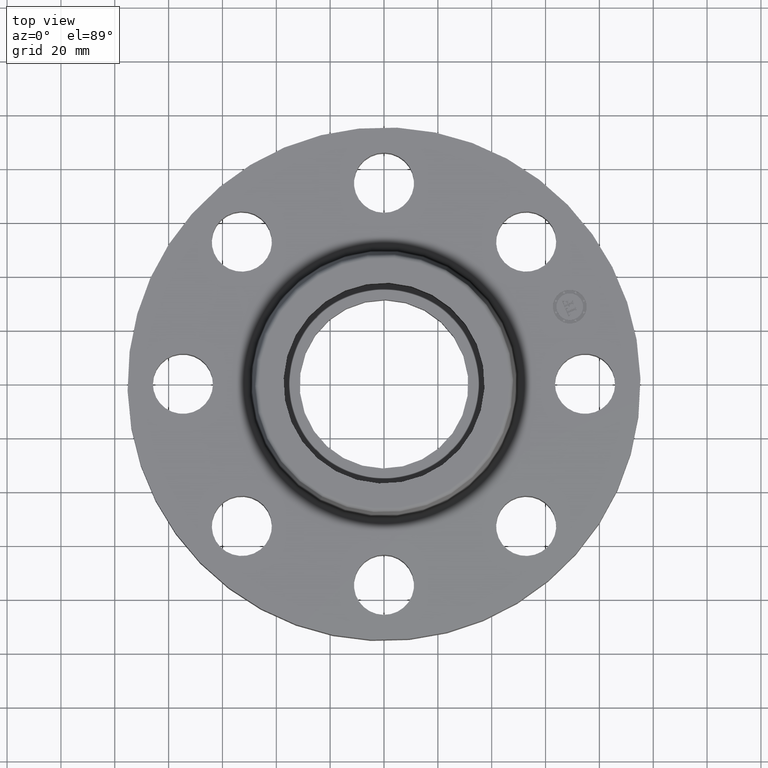
[diagram: clean part render]
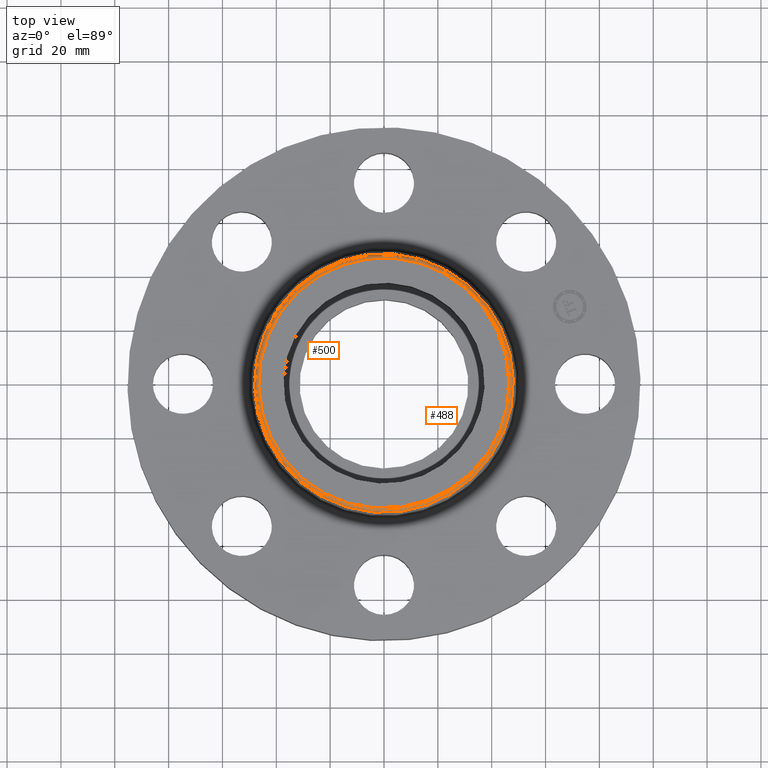
[diagram: same view with one multi-face feature highlighted, each face labeled with its STEP entity id]
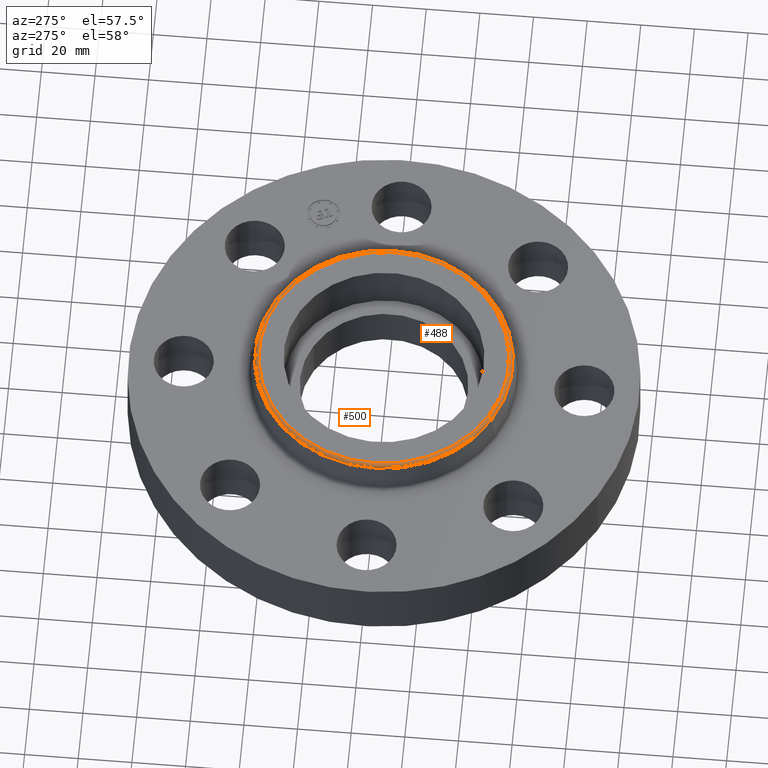
[diagram: same view with one multi-face feature highlighted, each face labeled with its STEP entity id]
A machine part, top view. The highlighted faces form ONE feature: a constant-radius fillet chain: 2 tangent blend faces with common blend radius 1.524 mm. The faces share edges in the B-rep.
A second angle (auxiliary view) of the same feature is appended — it is thin or edge-on in the first view.
Their STEP definitions:
[1] entity #500 (Torus):
#448=AXIS2_PLACEMENT_3D('Circle Axis2P3D',#446,#447,$) ;
#461=AXIS2_PLACEMENT_3D('Torus Axis2P3D',#458,#459,#460) ;
#465=AXIS2_PLACEMENT_3D('Circle Axis2P3D',#463,#464,$) ;
#479=AXIS2_PLACEMENT_3D('Circle Axis2P3D',#477,#478,$) ;
#491=AXIS2_PLACEMENT_3D('Circle Axis2P3D',#489,#490,$) ;
#424=CARTESIAN_POINT('Vertex',(0.906391853893,1.65913915961,1.39041889067)) ;
#431=CARTESIAN_POINT('Vertex',(-0.906391853893,-1.65913915961,1.39041889067)) ;
#446=CARTESIAN_POINT('Axis2P3D Location',(0.,0.,1.39041889067)) ;
#458=CARTESIAN_POINT('Axis2P3D Location',(0.,0.,1.38000000001)) ;
#463=CARTESIAN_POINT('Axis2P3D Location',(0.878063334648,1.60728415296,1.38000000001)) ;
#467=CARTESIAN_POINT('Vertex',(0.878063334648,1.60728415296,1.44000000001)) ;
#474=CARTESIAN_POINT('Vertex',(-0.878063334648,-1.60728415296,1.44000000001)) ;
#477=CARTESIAN_POINT('Axis2P3D Location',(-0.878063334648,-1.60728415296,1.38000000001)) ;
#489=CARTESIAN_POINT('Axis2P3D Location',(0.,0.,1.44000000001)) ;
#447=DIRECTION('Axis2P3D Direction',(0.,0.,-0.0393700787402)) ;
#459=DIRECTION('Axis2P3D Direction',(0.,0.,-0.0393700787402)) ;
#460=DIRECTION('Axis2P3D XDirection',(-0.0188750212049,-0.0345504945626,0.)) ;
#464=DIRECTION('Axis2P3D Direction',(-0.0345504945626,0.0188750212049,0.)) ;
#478=DIRECTION('Axis2P3D Direction',(0.0345504945626,-0.0188750212049,0.)) ;
#490=DIRECTION('Axis2P3D Direction',(0.,0.,-0.0393700787402)) ;
#495=ORIENTED_EDGE('',*,*,#450,.F.) ;
#496=ORIENTED_EDGE('',*,*,#481,.T.) ;
#497=ORIENTED_EDGE('',*,*,#493,.T.) ;
#498=ORIENTED_EDGE('',*,*,#469,.F.) ;
#500=ADVANCED_FACE('PartBody',(#499),#462,.T.) ;
#449=CIRCLE('generated circle',#448,1.89057899696) ;
#466=CIRCLE('generated circle',#465,0.0600000000002) ;
#480=CIRCLE('generated circle',#479,0.0600000000002) ;
#492=CIRCLE('generated circle',#491,1.83149053178) ;
#462=TOROIDAL_SURFACE('homeo Torus',#461,1.83149053178,0.0600000000002) ;
#450=EDGE_CURVE('',#432,#425,#449,.T.) ;
#469=EDGE_CURVE('',#425,#468,#466,.F.) ;
#481=EDGE_CURVE('',#432,#475,#480,.F.) ;
#493=EDGE_CURVE('',#475,#468,#492,.T.) ;
#494=EDGE_LOOP('',(#495,#496,#497,#498)) ;
#499=FACE_OUTER_BOUND('',#494,.T.) ;
#425=VERTEX_POINT('',#424) ;
#432=VERTEX_POINT('',#431) ;
#468=VERTEX_POINT('',#467) ;
#475=VERTEX_POINT('',#474) ;
[2] entity #488 (Torus):
#429=AXIS2_PLACEMENT_3D('Circle Axis2P3D',#427,#428,$) ;
#461=AXIS2_PLACEMENT_3D('Torus Axis2P3D',#458,#459,#460) ;
#465=AXIS2_PLACEMENT_3D('Circle Axis2P3D',#463,#464,$) ;
#472=AXIS2_PLACEMENT_3D('Circle Axis2P3D',#470,#471,$) ;
#479=AXIS2_PLACEMENT_3D('Circle Axis2P3D',#477,#478,$) ;
#424=CARTESIAN_POINT('Vertex',(0.906391853893,1.65913915961,1.39041889067)) ;
#427=CARTESIAN_POINT('Axis2P3D Location',(0.,0.,1.39041889067)) ;
#431=CARTESIAN_POINT('Vertex',(-0.906391853893,-1.65913915961,1.39041889067)) ;
#458=CARTESIAN_POINT('Axis2P3D Location',(0.,0.,1.38000000001)) ;
#463=CARTESIAN_POINT('Axis2P3D Location',(0.878063334648,1.60728415296,1.38000000001)) ;
#467=CARTESIAN_POINT('Vertex',(0.878063334648,1.60728415296,1.44000000001)) ;
#470=CARTESIAN_POINT('Axis2P3D Location',(0.,0.,1.44000000001)) ;
#474=CARTESIAN_POINT('Vertex',(-0.878063334648,-1.60728415296,1.44000000001)) ;
#477=CARTESIAN_POINT('Axis2P3D Location',(-0.878063334648,-1.60728415296,1.38000000001)) ;
#428=DIRECTION('Axis2P3D Direction',(0.,0.,-0.0393700787402)) ;
#459=DIRECTION('Axis2P3D Direction',(0.,0.,-0.0393700787402)) ;
#460=DIRECTION('Axis2P3D XDirection',(-0.0188750212049,-0.0345504945626,0.)) ;
#464=DIRECTION('Axis2P3D Direction',(-0.0345504945626,0.0188750212049,0.)) ;
#471=DIRECTION('Axis2P3D Direction',(0.,0.,-0.0393700787402)) ;
#478=DIRECTION('Axis2P3D Direction',(0.0345504945626,-0.0188750212049,0.)) ;
#483=ORIENTED_EDGE('',*,*,#433,.F.) ;
#484=ORIENTED_EDGE('',*,*,#469,.T.) ;
#485=ORIENTED_EDGE('',*,*,#476,.T.) ;
#486=ORIENTED_EDGE('',*,*,#481,.F.) ;
#488=ADVANCED_FACE('PartBody',(#487),#462,.T.) ;
#430=CIRCLE('generated circle',#429,1.89057899696) ;
#466=CIRCLE('generated circle',#465,0.0600000000002) ;
#473=CIRCLE('generated circle',#472,1.83149053178) ;
#480=CIRCLE('generated circle',#479,0.0600000000002) ;
#462=TOROIDAL_SURFACE('homeo Torus',#461,1.83149053178,0.0600000000002) ;
#433=EDGE_CURVE('',#425,#432,#430,.T.) ;
#469=EDGE_CURVE('',#425,#468,#466,.F.) ;
#476=EDGE_CURVE('',#468,#475,#473,.T.) ;
#481=EDGE_CURVE('',#432,#475,#480,.F.) ;
#482=EDGE_LOOP('',(#483,#484,#485,#486)) ;
#487=FACE_OUTER_BOUND('',#482,.T.) ;
#425=VERTEX_POINT('',#424) ;
#432=VERTEX_POINT('',#431) ;
#468=VERTEX_POINT('',#467) ;
#475=VERTEX_POINT('',#474) ;